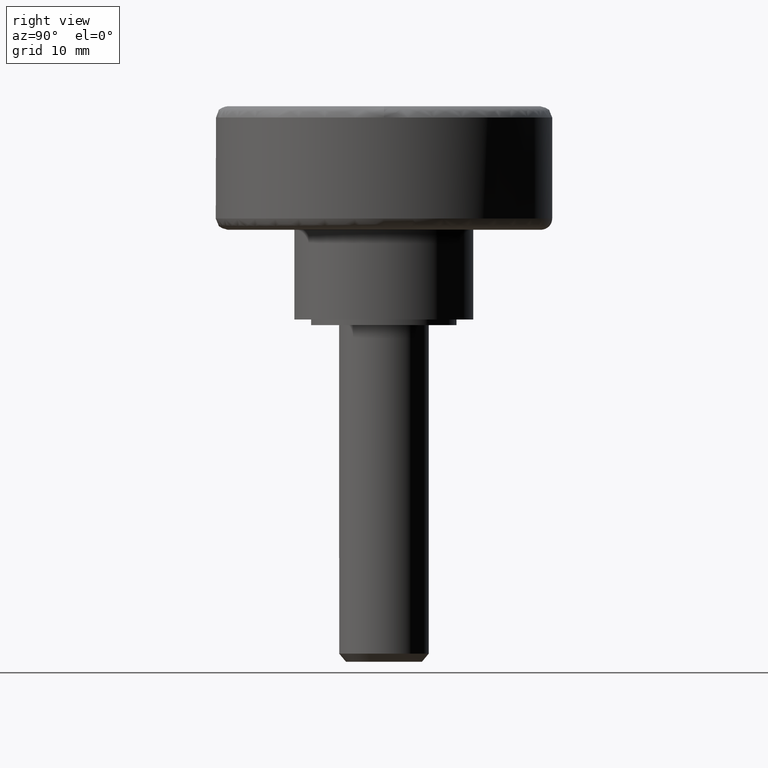
[diagram: clean part render]
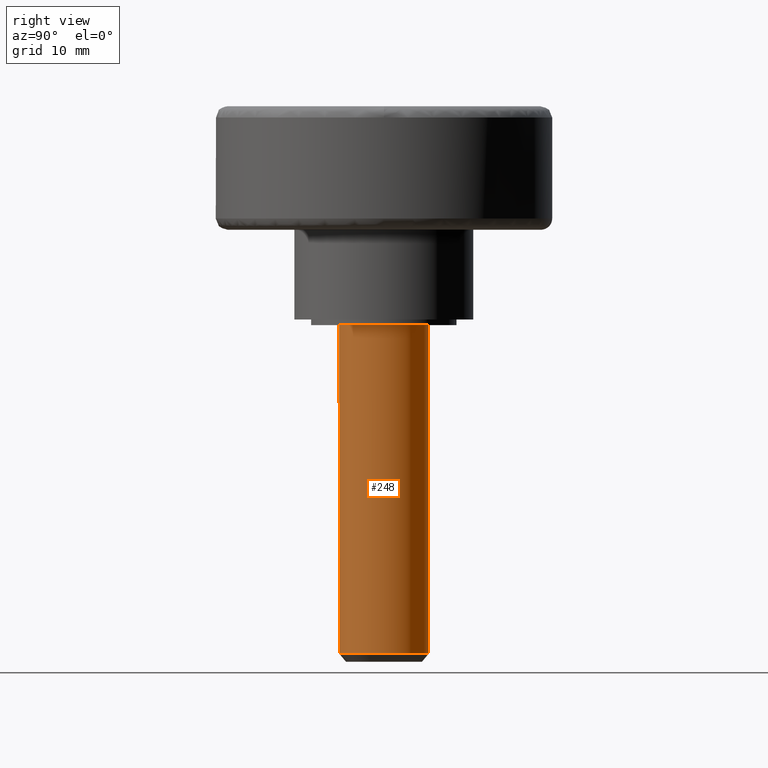
[diagram: same view with one face highlighted and labeled with its STEP entity id]
A machine part, right view. The second image highlights one B-rep face of the part: STEP entity #248.
In plain terms, the highlighted face is a freeform B-spline surface patch.
Its self-contained STEP definition (entity closure, byte-faithful):
#62=CARTESIAN_POINT('',(-0.456402659124527,-3.973876773724125,-29.280000000000001));
#63=VERTEX_POINT('',#62);
#79=CARTESIAN_POINT('',(-0.456402659052161,-3.973876773732436,1.005914E-015));
#80=VERTEX_POINT('',#79);
#81=CARTESIAN_POINT('',(-0.456402659052161,-3.973876773732436,1.005914E-015));
#82=CARTESIAN_POINT('',(-0.456402659124527,-3.973876773724125,-29.280000000000001));
#83=QUASI_UNIFORM_CURVE('',1,(#81,#82),.UNSPECIFIED.,.F.,.U.);
#84=EDGE_CURVE('',#80,#63,#83,.T.);
#101=CARTESIAN_POINT('',(-0.244196333953895,3.992539060607763,-7.216450E-016));
#102=VERTEX_POINT('',#101);
#116=CARTESIAN_POINT('',(-0.279015270591291,3.990104264312857,-29.279999999990348));
#117=VERTEX_POINT('',#116);
#118=CARTESIAN_POINT('',(-0.244196333953895,3.992539060607763,-7.216450E-016));
#119=CARTESIAN_POINT('',(-0.279015270591291,3.990104264312857,-29.279999999990348));
#120=QUASI_UNIFORM_CURVE('',1,(#118,#119),.UNSPECIFIED.,.F.,.U.);
#121=EDGE_CURVE('',#102,#117,#120,.T.);
#139=CARTESIAN_POINT('',(-0.338134324733748,3.986793566961183,0.732000000000000));
#140=CARTESIAN_POINT('',(-0.291394247496100,3.989652312551078,0.732000000000001));
#141=CARTESIAN_POINT('',(3.748345035548039,4.236733351826894,0.732000000000001));
#142=CARTESIAN_POINT('',(3.992539193687467,0.244194158139428,0.732000000000001));
#143=CARTESIAN_POINT('',(4.236733351826894,-3.748345035548039,0.732000000000001));
#144=CARTESIAN_POINT('',(0.244194158139428,-3.992539193687467,0.732000000000001));
#145=CARTESIAN_POINT('',(-0.106924872386187,-4.014014553579111,0.732000000000001));
#146=CARTESIAN_POINT('',(-0.488325109983748,-3.970210456854667,0.732000000000001));
#147=CARTESIAN_POINT('',(-0.520409423271114,-3.966525549966748,0.732000000000001));
#148=CARTESIAN_POINT('',(-0.338134324733748,3.986793566961183,-30.030299999999997));
#149=CARTESIAN_POINT('',(-0.291394247496100,3.989652312551078,-30.030300000000022));
#150=CARTESIAN_POINT('',(3.748345035548039,4.236733351826894,-30.030300000000015));
#151=CARTESIAN_POINT('',(3.992539193687467,0.244194158139428,-30.030300000000011));
#152=CARTESIAN_POINT('',(4.236733351826894,-3.748345035548039,-30.030300000000015));
#153=CARTESIAN_POINT('',(0.244194158139428,-3.992539193687467,-30.030300000000011));
#154=CARTESIAN_POINT('',(-0.106924872386187,-4.014014553579111,-30.030300000000008));
#155=CARTESIAN_POINT('',(-0.488325109983748,-3.970210456854667,-30.030300000000004));
#156=CARTESIAN_POINT('',(-0.520409423271114,-3.966525549966748,-30.030300000000011));
#164=(BOUNDED_SURFACE()B_SPLINE_SURFACE(2,1,((#139,#148),(#140,#149),(#141,#150),(#142,#151),(#143,#152),(#144,#153),(#145,#154),(#146,#155),(#147,#156)),.UNSPECIFIED.,.F.,.F.,.U.)B_SPLINE_SURFACE_WITH_KNOTS((3,1,2,2,1,3),(2,2),(0.0,0.111348618321363,6.738765616290881,13.366182614260399,14.161472654016750,14.231927740462041),(0.0,30.762300000000010),.UNSPECIFIED.)GEOMETRIC_REPRESENTATION_ITEM()RATIONAL_B_SPLINE_SURFACE(((1.009841920386349,1.009841920386349),(1.004920960193174,1.004920960193174),(0.707106781186548,0.707106781186548),(1.0,1.0),(0.707106781186548,0.707106781186548),(1.0,1.0),(0.964852813742386,0.964852813742386),(0.935774536890357,0.935774536890357),(0.933408121594116,0.933408121594116)))REPRESENTATION_ITEM('')SURFACE());
#165=CARTESIAN_POINT('',(0.313836383043154,-3.987669334938248,-29.279999999980689));
#166=VERTEX_POINT('',#165);
#167=CARTESIAN_POINT('',(0.313836383043154,-3.987669334938248,-29.279999999980689));
#168=CARTESIAN_POINT('',(0.157160428161797,-4.000000000000001,-29.279999999999994));
#169=CARTESIAN_POINT('',(0.0,-4.0,-29.280000000000001));
#170=CARTESIAN_POINT('',(-0.228948940265859,-4.0,-29.280000000000001));
#171=CARTESIAN_POINT('',(-0.456402659124527,-3.973876773724125,-29.279999999999998));
#179=(BOUNDED_CURVE()B_SPLINE_CURVE(2,(#167,#168,#169,#170,#171),.UNSPECIFIED.,.F.,.U.)B_SPLINE_CURVE_WITH_KNOTS((3,2,3),(0.736331300621546,0.750000000000000,0.769767755890499),.UNSPECIFIED.)CURVE()GEOMETRIC_REPRESENTATION_ITEM()RATIONAL_B_SPLINE_CURVE((0.969723356148398,0.983986122568204,1.0,0.976840633394052,0.957343736433264))REPRESENTATION_ITEM(''));
#180=EDGE_CURVE('',#166,#63,#179,.T.);
#181=ORIENTED_EDGE('',*,*,#180,.F.);
#182=CARTESIAN_POINT('',(4.0,0.0,-29.280000000000001));
#183=VERTEX_POINT('',#182);
#184=CARTESIAN_POINT('',(4.0,0.0,-29.280000000000001));
#185=CARTESIAN_POINT('',(4.0,-3.697561966390054,-29.279999999999994));
#186=CARTESIAN_POINT('',(0.313836383043154,-3.987669334938247,-29.279999999980681));
#194=(BOUNDED_CURVE()B_SPLINE_CURVE(2,(#184,#185,#186),.UNSPECIFIED.,.F.,.U.)B_SPLINE_CURVE_WITH_KNOTS((3,3),(0.500000000000000,0.736331300621546),.UNSPECIFIED.)CURVE()GEOMETRIC_REPRESENTATION_ITEM()RATIONAL_B_SPLINE_CURVE((1.0,0.723120658618343,0.969723356148399))REPRESENTATION_ITEM(''));
#195=EDGE_CURVE('',#183,#166,#194,.T.);
#196=ORIENTED_EDGE('',*,*,#195,.F.);
#197=CARTESIAN_POINT('',(-0.279015270591291,3.990104264312858,-29.279999999990348));
#198=CARTESIAN_POINT('',(-0.139672626537244,3.999850537122811,-29.279999999990494));
#199=CARTESIAN_POINT('',(0.000010265955601,3.999853189996432,-29.279999999990672));
#200=CARTESIAN_POINT('',(4.000004953730267,3.999929158357364,-29.279999999995496));
#201=CARTESIAN_POINT('',(4.0,0.0,-29.280000000000001));
#209=(BOUNDED_CURVE()B_SPLINE_CURVE(2,(#197,#198,#199,#200,#201),.UNSPECIFIED.,.F.,.U.)B_SPLINE_CURVE_WITH_KNOTS((3,2,3),(0.237829682994145,0.250000000000000,0.500000000000000),.UNSPECIFIED.)CURVE()GEOMETRIC_REPRESENTATION_ITEM()RATIONAL_B_SPLINE_CURVE((0.972871408703056,0.985741586712701,1.0,0.707106781186548,1.0))REPRESENTATION_ITEM(''));
#210=EDGE_CURVE('',#117,#183,#209,.T.);
#211=ORIENTED_EDGE('',*,*,#210,.F.);
#212=ORIENTED_EDGE('',*,*,#121,.F.);
#213=CARTESIAN_POINT('',(4.0,0.0,0.0));
#214=VERTEX_POINT('',#213);
#215=CARTESIAN_POINT('',(-0.244196333953895,3.992539060607764,-7.216450E-016));
#216=CARTESIAN_POINT('',(-0.122212144152021,4.000000000000001,0.0));
#217=CARTESIAN_POINT('',(0.0,4.0,0.0));
#218=CARTESIAN_POINT('',(4.000000000000000,4.000000000000000,0.0));
#219=CARTESIAN_POINT('',(4.0,0.0,0.0));
#227=(BOUNDED_CURVE()B_SPLINE_CURVE(2,(#215,#216,#217,#218,#219),.UNSPECIFIED.,.F.,.U.)B_SPLINE_CURVE_WITH_KNOTS((3,2,3),(0.739332868209134,0.750000000000000,1.0),.UNSPECIFIED.)CURVE()GEOMETRIC_REPRESENTATION_ITEM()RATIONAL_B_SPLINE_CURVE((0.976071840143022,0.987502677737064,1.0,0.707106781186548,1.0))REPRESENTATION_ITEM(''));
#228=EDGE_CURVE('',#102,#214,#227,.T.);
#229=ORIENTED_EDGE('',*,*,#228,.T.);
#230=CARTESIAN_POINT('',(4.0,0.0,0.0));
#231=CARTESIAN_POINT('',(4.000000000000000,-4.000000000000000,0.0));
#232=CARTESIAN_POINT('',(0.0,-4.0,0.0));
#233=CARTESIAN_POINT('',(-0.228948940192786,-4.0,0.0));
#234=CARTESIAN_POINT('',(-0.456402659052161,-3.973876773732435,1.005914E-015));
#242=(BOUNDED_CURVE()B_SPLINE_CURVE(2,(#230,#231,#232,#233,#234),.UNSPECIFIED.,.F.,.U.)B_SPLINE_CURVE_WITH_KNOTS((3,2,3),(0.0,0.250000000000000,0.269767755884336),.UNSPECIFIED.)CURVE()GEOMETRIC_REPRESENTATION_ITEM()RATIONAL_B_SPLINE_CURVE((1.0,0.707106781186548,1.0,0.976840633401273,0.957343736445421))REPRESENTATION_ITEM(''));
#243=EDGE_CURVE('',#214,#80,#242,.T.);
#244=ORIENTED_EDGE('',*,*,#243,.T.);
#245=ORIENTED_EDGE('',*,*,#84,.T.);
#246=EDGE_LOOP('',(#181,#196,#211,#212,#229,#244,#245));
#247=FACE_OUTER_BOUND('',#246,.T.);
#248=ADVANCED_FACE('',(#247),#164,.T.);